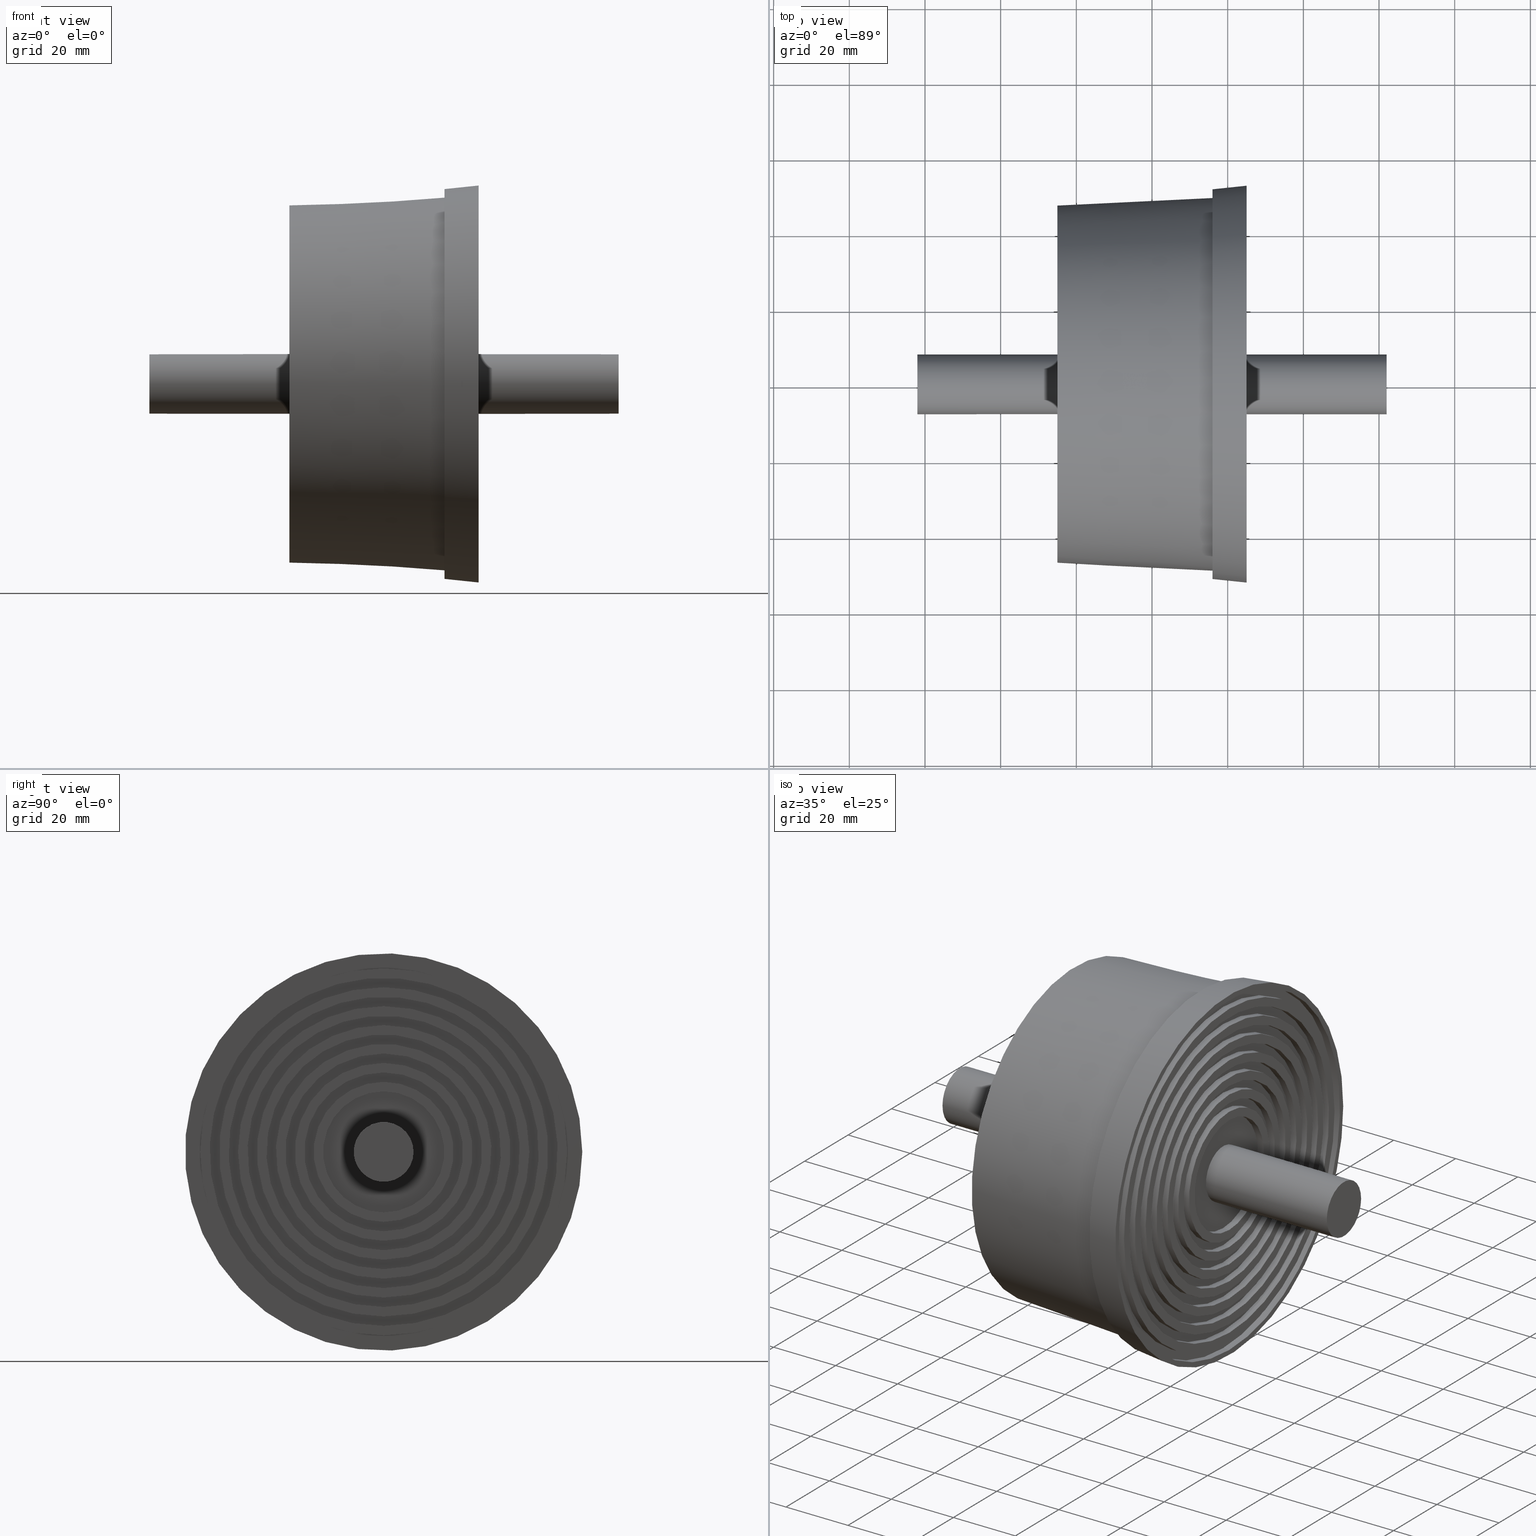
[diagram: canonical four-view strip — front | top / right | iso, engineering-drawing reading convention]
A machine part, canonical four-view strip (front | top / right | iso — engineering-drawing reading convention). The complete STEP part file that produces these views, byte-faithful:
ISO-10303-21;
HEADER;
/* Generated by software containing ST-Developer
 * from STEP Tools, Inc. (www.steptools.com) 
 */

FILE_DESCRIPTION(
/* description */ (''),
/* implementation_level */ '2;1');

FILE_NAME(
/* name */ '\\\\SYNOLOGYNAS\\web\\db2\\PR7-M16-100\\\X2\B3C4BA74\X0\\\
PR7-M16-100.stp',
/* time_stamp */ '2024-10-21T15:23:28+09:00',
/* author */ ('user'),
/* organization */ (''),
/* preprocessor_version */ 'ST-DEVELOPER v15.6',
/* originating_system */ 'Autodesk Inventor 2015',
/* authorisation */ '');

FILE_SCHEMA (('AUTOMOTIVE_DESIGN { 1 0 10303 214 3 1 1 }'));
ENDSEC;

DATA;
#10=MECHANICAL_DESIGN_GEOMETRIC_PRESENTATION_REPRESENTATION('',(#13),#1309);
#11=SHAPE_REPRESENTATION_RELATIONSHIP('SRR','None',#1318,#12);
#12=ADVANCED_BREP_SHAPE_REPRESENTATION($,(#14),#1308);
#13=STYLED_ITEM('',(#1327),#14);
#14=MANIFOLD_SOLID_BREP('\X2\C194B9ACB4DC\X0\1',#721);
#15=CONICAL_SURFACE('',#840,48.25,2.79270236571328);
#16=CONICAL_SURFACE('',#850,52.0275,5.99409294910843);
#17=PLANE('',#726);
#18=PLANE('',#734);
#19=PLANE('',#741);
#20=PLANE('',#748);
#21=PLANE('',#755);
#22=PLANE('',#762);
#23=PLANE('',#769);
#24=PLANE('',#776);
#25=PLANE('',#777);
#26=PLANE('',#779);
#27=PLANE('',#780);
#28=PLANE('',#781);
#29=PLANE('',#782);
#30=PLANE('',#783);
#31=PLANE('',#784);
#32=PLANE('',#788);
#33=PLANE('',#796);
#34=PLANE('',#803);
#35=PLANE('',#810);
#36=PLANE('',#817);
#37=PLANE('',#824);
#38=PLANE('',#831);
#39=PLANE('',#832);
#40=PLANE('',#834);
#41=PLANE('',#835);
#42=PLANE('',#836);
#43=PLANE('',#837);
#44=PLANE('',#838);
#45=PLANE('',#839);
#46=PLANE('',#846);
#47=PLANE('',#847);
#48=PLANE('',#848);
#49=PLANE('',#851);
#50=FACE_BOUND('',#179,.T.);
#51=FACE_BOUND('',#181,.T.);
#52=FACE_BOUND('',#183,.T.);
#53=FACE_BOUND('',#185,.T.);
#54=FACE_BOUND('',#187,.T.);
#55=FACE_BOUND('',#189,.T.);
#56=FACE_BOUND('',#191,.T.);
#57=FACE_BOUND('',#193,.T.);
#58=FACE_BOUND('',#195,.T.);
#59=FACE_BOUND('',#197,.T.);
#60=FACE_BOUND('',#199,.T.);
#61=FACE_BOUND('',#201,.T.);
#62=FACE_BOUND('',#203,.T.);
#63=FACE_BOUND('',#205,.T.);
#64=FACE_BOUND('',#207,.T.);
#65=FACE_BOUND('',#209,.T.);
#66=FACE_BOUND('',#211,.T.);
#67=FACE_BOUND('',#213,.T.);
#68=FACE_BOUND('',#215,.T.);
#69=FACE_BOUND('',#217,.T.);
#70=FACE_BOUND('',#219,.T.);
#71=FACE_BOUND('',#221,.T.);
#72=FACE_BOUND('',#223,.T.);
#73=FACE_BOUND('',#225,.T.);
#74=FACE_BOUND('',#227,.T.);
#75=FACE_BOUND('',#229,.T.);
#76=FACE_BOUND('',#231,.T.);
#77=FACE_BOUND('',#233,.T.);
#78=FACE_BOUND('',#235,.T.);
#79=FACE_BOUND('',#237,.T.);
#80=FACE_BOUND('',#239,.T.);
#81=FACE_BOUND('',#241,.T.);
#82=FACE_BOUND('',#243,.T.);
#83=FACE_BOUND('',#245,.T.);
#84=FACE_BOUND('',#247,.T.);
#85=FACE_BOUND('',#249,.T.);
#86=FACE_BOUND('',#251,.T.);
#87=FACE_BOUND('',#253,.T.);
#88=FACE_BOUND('',#255,.T.);
#89=FACE_BOUND('',#257,.T.);
#90=FACE_BOUND('',#259,.T.);
#91=FACE_BOUND('',#261,.T.);
#92=FACE_BOUND('',#263,.T.);
#93=FACE_BOUND('',#265,.T.);
#94=FACE_BOUND('',#267,.T.);
#95=FACE_BOUND('',#269,.T.);
#96=FACE_BOUND('',#271,.T.);
#97=FACE_BOUND('',#273,.T.);
#98=FACE_BOUND('',#275,.T.);
#99=FACE_BOUND('',#277,.T.);
#100=FACE_BOUND('',#279,.T.);
#101=FACE_BOUND('',#281,.T.);
#102=FACE_BOUND('',#283,.T.);
#103=FACE_BOUND('',#285,.T.);
#104=FACE_BOUND('',#287,.T.);
#105=FACE_BOUND('',#289,.T.);
#106=FACE_BOUND('',#291,.T.);
#107=FACE_BOUND('',#293,.T.);
#108=FACE_BOUND('',#295,.T.);
#109=FACE_BOUND('',#297,.T.);
#110=FACE_BOUND('',#301,.T.);
#111=FACE_BOUND('',#303,.T.);
#112=FACE_BOUND('',#305,.T.);
#113=FACE_OUTER_BOUND('',#178,.T.);
#114=FACE_OUTER_BOUND('',#180,.T.);
#115=FACE_OUTER_BOUND('',#182,.T.);
#116=FACE_OUTER_BOUND('',#184,.T.);
#117=FACE_OUTER_BOUND('',#186,.T.);
#118=FACE_OUTER_BOUND('',#188,.T.);
#119=FACE_OUTER_BOUND('',#190,.T.);
#120=FACE_OUTER_BOUND('',#192,.T.);
#121=FACE_OUTER_BOUND('',#194,.T.);
#122=FACE_OUTER_BOUND('',#196,.T.);
#123=FACE_OUTER_BOUND('',#198,.T.);
#124=FACE_OUTER_BOUND('',#200,.T.);
#125=FACE_OUTER_BOUND('',#202,.T.);
#126=FACE_OUTER_BOUND('',#204,.T.);
#127=FACE_OUTER_BOUND('',#206,.T.);
#128=FACE_OUTER_BOUND('',#208,.T.);
#129=FACE_OUTER_BOUND('',#210,.T.);
#130=FACE_OUTER_BOUND('',#212,.T.);
#131=FACE_OUTER_BOUND('',#214,.T.);
#132=FACE_OUTER_BOUND('',#216,.T.);
#133=FACE_OUTER_BOUND('',#218,.T.);
#134=FACE_OUTER_BOUND('',#220,.T.);
#135=FACE_OUTER_BOUND('',#222,.T.);
#136=FACE_OUTER_BOUND('',#224,.T.);
#137=FACE_OUTER_BOUND('',#226,.T.);
#138=FACE_OUTER_BOUND('',#228,.T.);
#139=FACE_OUTER_BOUND('',#230,.T.);
#140=FACE_OUTER_BOUND('',#232,.T.);
#141=FACE_OUTER_BOUND('',#234,.T.);
#142=FACE_OUTER_BOUND('',#236,.T.);
#143=FACE_OUTER_BOUND('',#238,.T.);
#144=FACE_OUTER_BOUND('',#240,.T.);
#145=FACE_OUTER_BOUND('',#242,.T.);
#146=FACE_OUTER_BOUND('',#244,.T.);
#147=FACE_OUTER_BOUND('',#246,.T.);
#148=FACE_OUTER_BOUND('',#248,.T.);
#149=FACE_OUTER_BOUND('',#250,.T.);
#150=FACE_OUTER_BOUND('',#252,.T.);
#151=FACE_OUTER_BOUND('',#254,.T.);
#152=FACE_OUTER_BOUND('',#256,.T.);
#153=FACE_OUTER_BOUND('',#258,.T.);
#154=FACE_OUTER_BOUND('',#260,.T.);
#155=FACE_OUTER_BOUND('',#262,.T.);
#156=FACE_OUTER_BOUND('',#264,.T.);
#157=FACE_OUTER_BOUND('',#266,.T.);
#158=FACE_OUTER_BOUND('',#268,.T.);
#159=FACE_OUTER_BOUND('',#270,.T.);
#160=FACE_OUTER_BOUND('',#272,.T.);
#161=FACE_OUTER_BOUND('',#274,.T.);
#162=FACE_OUTER_BOUND('',#276,.T.);
#163=FACE_OUTER_BOUND('',#278,.T.);
#164=FACE_OUTER_BOUND('',#280,.T.);
#165=FACE_OUTER_BOUND('',#282,.T.);
#166=FACE_OUTER_BOUND('',#284,.T.);
#167=FACE_OUTER_BOUND('',#286,.T.);
#168=FACE_OUTER_BOUND('',#288,.T.);
#169=FACE_OUTER_BOUND('',#290,.T.);
#170=FACE_OUTER_BOUND('',#292,.T.);
#171=FACE_OUTER_BOUND('',#294,.T.);
#172=FACE_OUTER_BOUND('',#296,.T.);
#173=FACE_OUTER_BOUND('',#298,.T.);
#174=FACE_OUTER_BOUND('',#299,.T.);
#175=FACE_OUTER_BOUND('',#300,.T.);
#176=FACE_OUTER_BOUND('',#302,.T.);
#177=FACE_OUTER_BOUND('',#304,.T.);
#178=EDGE_LOOP('',(#498));
#179=EDGE_LOOP('',(#499));
#180=EDGE_LOOP('',(#500));
#181=EDGE_LOOP('',(#501));
#182=EDGE_LOOP('',(#502));
#183=EDGE_LOOP('',(#503));
#184=EDGE_LOOP('',(#504));
#185=EDGE_LOOP('',(#505));
#186=EDGE_LOOP('',(#506));
#187=EDGE_LOOP('',(#507));
#188=EDGE_LOOP('',(#508));
#189=EDGE_LOOP('',(#509));
#190=EDGE_LOOP('',(#510));
#191=EDGE_LOOP('',(#511));
#192=EDGE_LOOP('',(#512));
#193=EDGE_LOOP('',(#513));
#194=EDGE_LOOP('',(#514));
#195=EDGE_LOOP('',(#515));
#196=EDGE_LOOP('',(#516));
#197=EDGE_LOOP('',(#517));
#198=EDGE_LOOP('',(#518));
#199=EDGE_LOOP('',(#519));
#200=EDGE_LOOP('',(#520));
#201=EDGE_LOOP('',(#521));
#202=EDGE_LOOP('',(#522));
#203=EDGE_LOOP('',(#523));
#204=EDGE_LOOP('',(#524));
#205=EDGE_LOOP('',(#525));
#206=EDGE_LOOP('',(#526));
#207=EDGE_LOOP('',(#527));
#208=EDGE_LOOP('',(#528));
#209=EDGE_LOOP('',(#529));
#210=EDGE_LOOP('',(#530));
#211=EDGE_LOOP('',(#531));
#212=EDGE_LOOP('',(#532));
#213=EDGE_LOOP('',(#533));
#214=EDGE_LOOP('',(#534));
#215=EDGE_LOOP('',(#535));
#216=EDGE_LOOP('',(#536));
#217=EDGE_LOOP('',(#537));
#218=EDGE_LOOP('',(#538));
#219=EDGE_LOOP('',(#539));
#220=EDGE_LOOP('',(#540));
#221=EDGE_LOOP('',(#541));
#222=EDGE_LOOP('',(#542));
#223=EDGE_LOOP('',(#543));
#224=EDGE_LOOP('',(#544));
#225=EDGE_LOOP('',(#545));
#226=EDGE_LOOP('',(#546));
#227=EDGE_LOOP('',(#547));
#228=EDGE_LOOP('',(#548));
#229=EDGE_LOOP('',(#549));
#230=EDGE_LOOP('',(#550));
#231=EDGE_LOOP('',(#551));
#232=EDGE_LOOP('',(#552));
#233=EDGE_LOOP('',(#553));
#234=EDGE_LOOP('',(#554));
#235=EDGE_LOOP('',(#555));
#236=EDGE_LOOP('',(#556));
#237=EDGE_LOOP('',(#557));
#238=EDGE_LOOP('',(#558));
#239=EDGE_LOOP('',(#559));
#240=EDGE_LOOP('',(#560));
#241=EDGE_LOOP('',(#561));
#242=EDGE_LOOP('',(#562));
#243=EDGE_LOOP('',(#563));
#244=EDGE_LOOP('',(#564));
#245=EDGE_LOOP('',(#565));
#246=EDGE_LOOP('',(#566));
#247=EDGE_LOOP('',(#567));
#248=EDGE_LOOP('',(#568));
#249=EDGE_LOOP('',(#569));
#250=EDGE_LOOP('',(#570));
#251=EDGE_LOOP('',(#571));
#252=EDGE_LOOP('',(#572));
#253=EDGE_LOOP('',(#573));
#254=EDGE_LOOP('',(#574));
#255=EDGE_LOOP('',(#575));
#256=EDGE_LOOP('',(#576));
#257=EDGE_LOOP('',(#577));
#258=EDGE_LOOP('',(#578));
#259=EDGE_LOOP('',(#579));
#260=EDGE_LOOP('',(#580));
#261=EDGE_LOOP('',(#581));
#262=EDGE_LOOP('',(#582));
#263=EDGE_LOOP('',(#583));
#264=EDGE_LOOP('',(#584));
#265=EDGE_LOOP('',(#585));
#266=EDGE_LOOP('',(#586));
#267=EDGE_LOOP('',(#587));
#268=EDGE_LOOP('',(#588));
#269=EDGE_LOOP('',(#589));
#270=EDGE_LOOP('',(#590));
#271=EDGE_LOOP('',(#591));
#272=EDGE_LOOP('',(#592));
#273=EDGE_LOOP('',(#593));
#274=EDGE_LOOP('',(#594));
#275=EDGE_LOOP('',(#595));
#276=EDGE_LOOP('',(#596));
#277=EDGE_LOOP('',(#597));
#278=EDGE_LOOP('',(#598));
#279=EDGE_LOOP('',(#599));
#280=EDGE_LOOP('',(#600));
#281=EDGE_LOOP('',(#601));
#282=EDGE_LOOP('',(#602));
#283=EDGE_LOOP('',(#603));
#284=EDGE_LOOP('',(#604));
#285=EDGE_LOOP('',(#605));
#286=EDGE_LOOP('',(#606));
#287=EDGE_LOOP('',(#607));
#288=EDGE_LOOP('',(#608));
#289=EDGE_LOOP('',(#609));
#290=EDGE_LOOP('',(#610));
#291=EDGE_LOOP('',(#611));
#292=EDGE_LOOP('',(#612));
#293=EDGE_LOOP('',(#613));
#294=EDGE_LOOP('',(#614));
#295=EDGE_LOOP('',(#615));
#296=EDGE_LOOP('',(#616));
#297=EDGE_LOOP('',(#617));
#298=EDGE_LOOP('',(#618));
#299=EDGE_LOOP('',(#619));
#300=EDGE_LOOP('',(#620));
#301=EDGE_LOOP('',(#621));
#302=EDGE_LOOP('',(#622));
#303=EDGE_LOOP('',(#623));
#304=EDGE_LOOP('',(#624));
#305=EDGE_LOOP('',(#625));
#306=CIRCLE('',#724,16.);
#307=CIRCLE('',#725,16.);
#308=CIRCLE('',#727,7.89999999999999);
#309=CIRCLE('',#729,18.5);
#310=CIRCLE('',#730,18.5);
#311=CIRCLE('',#732,21.);
#312=CIRCLE('',#733,21.);
#313=CIRCLE('',#736,23.5);
#314=CIRCLE('',#737,23.5);
#315=CIRCLE('',#739,26.);
#316=CIRCLE('',#740,26.);
#317=CIRCLE('',#743,28.5);
#318=CIRCLE('',#744,28.5);
#319=CIRCLE('',#746,31.);
#320=CIRCLE('',#747,31.);
#321=CIRCLE('',#750,33.5);
#322=CIRCLE('',#751,33.5);
#323=CIRCLE('',#753,36.);
#324=CIRCLE('',#754,36.);
#325=CIRCLE('',#757,38.5);
#326=CIRCLE('',#758,38.5);
#327=CIRCLE('',#760,41.);
#328=CIRCLE('',#761,41.);
#329=CIRCLE('',#764,43.5);
#330=CIRCLE('',#765,43.5);
#331=CIRCLE('',#767,46.);
#332=CIRCLE('',#768,46.);
#333=CIRCLE('',#771,48.5);
#334=CIRCLE('',#772,48.5);
#335=CIRCLE('',#774,51.);
#336=CIRCLE('',#775,51.);
#337=CIRCLE('',#778,52.5);
#338=CIRCLE('',#786,15.25);
#339=CIRCLE('',#787,15.25);
#340=CIRCLE('',#789,7.89999999999999);
#341=CIRCLE('',#791,17.75);
#342=CIRCLE('',#792,17.75);
#343=CIRCLE('',#794,20.25);
#344=CIRCLE('',#795,20.25);
#345=CIRCLE('',#798,22.75);
#346=CIRCLE('',#799,22.75);
#347=CIRCLE('',#801,25.25);
#348=CIRCLE('',#802,25.25);
#349=CIRCLE('',#805,27.75);
#350=CIRCLE('',#806,27.75);
#351=CIRCLE('',#808,30.25);
#352=CIRCLE('',#809,30.25);
#353=CIRCLE('',#812,32.75);
#354=CIRCLE('',#813,32.75);
#355=CIRCLE('',#815,35.25);
#356=CIRCLE('',#816,35.25);
#357=CIRCLE('',#819,37.75);
#358=CIRCLE('',#820,37.75);
#359=CIRCLE('',#822,40.25);
#360=CIRCLE('',#823,40.25);
#361=CIRCLE('',#826,42.75);
#362=CIRCLE('',#827,42.75);
#363=CIRCLE('',#829,45.25);
#364=CIRCLE('',#830,45.25);
#365=CIRCLE('',#833,47.25);
#366=CIRCLE('',#841,49.25);
#367=CIRCLE('',#843,7.9);
#368=CIRCLE('',#845,7.89999999999998);
#369=CIRCLE('',#849,51.555);
#370=VERTEX_POINT('',#1114);
#371=VERTEX_POINT('',#1116);
#372=VERTEX_POINT('',#1119);
#373=VERTEX_POINT('',#1122);
#374=VERTEX_POINT('',#1124);
#375=VERTEX_POINT('',#1127);
#376=VERTEX_POINT('',#1129);
#377=VERTEX_POINT('',#1133);
#378=VERTEX_POINT('',#1135);
#379=VERTEX_POINT('',#1138);
#380=VERTEX_POINT('',#1140);
#381=VERTEX_POINT('',#1144);
#382=VERTEX_POINT('',#1146);
#383=VERTEX_POINT('',#1149);
#384=VERTEX_POINT('',#1151);
#385=VERTEX_POINT('',#1155);
#386=VERTEX_POINT('',#1157);
#387=VERTEX_POINT('',#1160);
#388=VERTEX_POINT('',#1162);
#389=VERTEX_POINT('',#1166);
#390=VERTEX_POINT('',#1168);
#391=VERTEX_POINT('',#1171);
#392=VERTEX_POINT('',#1173);
#393=VERTEX_POINT('',#1177);
#394=VERTEX_POINT('',#1179);
#395=VERTEX_POINT('',#1182);
#396=VERTEX_POINT('',#1184);
#397=VERTEX_POINT('',#1188);
#398=VERTEX_POINT('',#1190);
#399=VERTEX_POINT('',#1193);
#400=VERTEX_POINT('',#1195);
#401=VERTEX_POINT('',#1199);
#402=VERTEX_POINT('',#1208);
#403=VERTEX_POINT('',#1210);
#404=VERTEX_POINT('',#1213);
#405=VERTEX_POINT('',#1216);
#406=VERTEX_POINT('',#1218);
#407=VERTEX_POINT('',#1221);
#408=VERTEX_POINT('',#1223);
#409=VERTEX_POINT('',#1227);
#410=VERTEX_POINT('',#1229);
#411=VERTEX_POINT('',#1232);
#412=VERTEX_POINT('',#1234);
#413=VERTEX_POINT('',#1238);
#414=VERTEX_POINT('',#1240);
#415=VERTEX_POINT('',#1243);
#416=VERTEX_POINT('',#1245);
#417=VERTEX_POINT('',#1249);
#418=VERTEX_POINT('',#1251);
#419=VERTEX_POINT('',#1254);
#420=VERTEX_POINT('',#1256);
#421=VERTEX_POINT('',#1260);
#422=VERTEX_POINT('',#1262);
#423=VERTEX_POINT('',#1265);
#424=VERTEX_POINT('',#1267);
#425=VERTEX_POINT('',#1271);
#426=VERTEX_POINT('',#1273);
#427=VERTEX_POINT('',#1276);
#428=VERTEX_POINT('',#1278);
#429=VERTEX_POINT('',#1282);
#430=VERTEX_POINT('',#1291);
#431=VERTEX_POINT('',#1294);
#432=VERTEX_POINT('',#1297);
#433=VERTEX_POINT('',#1302);
#434=EDGE_CURVE('',#370,#370,#306,.T.);
#435=EDGE_CURVE('',#371,#371,#307,.T.);
#436=EDGE_CURVE('',#372,#372,#308,.T.);
#437=EDGE_CURVE('',#373,#373,#309,.T.);
#438=EDGE_CURVE('',#374,#374,#310,.T.);
#439=EDGE_CURVE('',#375,#375,#311,.T.);
#440=EDGE_CURVE('',#376,#376,#312,.T.);
#441=EDGE_CURVE('',#377,#377,#313,.T.);
#442=EDGE_CURVE('',#378,#378,#314,.T.);
#443=EDGE_CURVE('',#379,#379,#315,.T.);
#444=EDGE_CURVE('',#380,#380,#316,.T.);
#445=EDGE_CURVE('',#381,#381,#317,.T.);
#446=EDGE_CURVE('',#382,#382,#318,.T.);
#447=EDGE_CURVE('',#383,#383,#319,.T.);
#448=EDGE_CURVE('',#384,#384,#320,.T.);
#449=EDGE_CURVE('',#385,#385,#321,.T.);
#450=EDGE_CURVE('',#386,#386,#322,.T.);
#451=EDGE_CURVE('',#387,#387,#323,.T.);
#452=EDGE_CURVE('',#388,#388,#324,.T.);
#453=EDGE_CURVE('',#389,#389,#325,.T.);
#454=EDGE_CURVE('',#390,#390,#326,.T.);
#455=EDGE_CURVE('',#391,#391,#327,.T.);
#456=EDGE_CURVE('',#392,#392,#328,.T.);
#457=EDGE_CURVE('',#393,#393,#329,.T.);
#458=EDGE_CURVE('',#394,#394,#330,.T.);
#459=EDGE_CURVE('',#395,#395,#331,.T.);
#460=EDGE_CURVE('',#396,#396,#332,.T.);
#461=EDGE_CURVE('',#397,#397,#333,.T.);
#462=EDGE_CURVE('',#398,#398,#334,.T.);
#463=EDGE_CURVE('',#399,#399,#335,.T.);
#464=EDGE_CURVE('',#400,#400,#336,.T.);
#465=EDGE_CURVE('',#401,#401,#337,.T.);
#466=EDGE_CURVE('',#402,#402,#338,.T.);
#467=EDGE_CURVE('',#403,#403,#339,.T.);
#468=EDGE_CURVE('',#404,#404,#340,.T.);
#469=EDGE_CURVE('',#405,#405,#341,.T.);
#470=EDGE_CURVE('',#406,#406,#342,.T.);
#471=EDGE_CURVE('',#407,#407,#343,.T.);
#472=EDGE_CURVE('',#408,#408,#344,.T.);
#473=EDGE_CURVE('',#409,#409,#345,.T.);
#474=EDGE_CURVE('',#410,#410,#346,.T.);
#475=EDGE_CURVE('',#411,#411,#347,.T.);
#476=EDGE_CURVE('',#412,#412,#348,.T.);
#477=EDGE_CURVE('',#413,#413,#349,.T.);
#478=EDGE_CURVE('',#414,#414,#350,.T.);
#479=EDGE_CURVE('',#415,#415,#351,.T.);
#480=EDGE_CURVE('',#416,#416,#352,.T.);
#481=EDGE_CURVE('',#417,#417,#353,.T.);
#482=EDGE_CURVE('',#418,#418,#354,.T.);
#483=EDGE_CURVE('',#419,#419,#355,.T.);
#484=EDGE_CURVE('',#420,#420,#356,.T.);
#485=EDGE_CURVE('',#421,#421,#357,.T.);
#486=EDGE_CURVE('',#422,#422,#358,.T.);
#487=EDGE_CURVE('',#423,#423,#359,.T.);
#488=EDGE_CURVE('',#424,#424,#360,.T.);
#489=EDGE_CURVE('',#425,#425,#361,.T.);
#490=EDGE_CURVE('',#426,#426,#362,.T.);
#491=EDGE_CURVE('',#427,#427,#363,.T.);
#492=EDGE_CURVE('',#428,#428,#364,.T.);
#493=EDGE_CURVE('',#429,#429,#365,.T.);
#494=EDGE_CURVE('',#430,#430,#366,.T.);
#495=EDGE_CURVE('',#431,#431,#367,.T.);
#496=EDGE_CURVE('',#432,#432,#368,.T.);
#497=EDGE_CURVE('',#433,#433,#369,.T.);
#498=ORIENTED_EDGE('',*,*,#434,.T.);
#499=ORIENTED_EDGE('',*,*,#435,.F.);
#500=ORIENTED_EDGE('',*,*,#434,.F.);
#501=ORIENTED_EDGE('',*,*,#436,.F.);
#502=ORIENTED_EDGE('',*,*,#437,.T.);
#503=ORIENTED_EDGE('',*,*,#438,.F.);
#504=ORIENTED_EDGE('',*,*,#439,.T.);
#505=ORIENTED_EDGE('',*,*,#440,.F.);
#506=ORIENTED_EDGE('',*,*,#439,.F.);
#507=ORIENTED_EDGE('',*,*,#437,.F.);
#508=ORIENTED_EDGE('',*,*,#441,.T.);
#509=ORIENTED_EDGE('',*,*,#442,.F.);
#510=ORIENTED_EDGE('',*,*,#443,.T.);
#511=ORIENTED_EDGE('',*,*,#444,.F.);
#512=ORIENTED_EDGE('',*,*,#443,.F.);
#513=ORIENTED_EDGE('',*,*,#441,.F.);
#514=ORIENTED_EDGE('',*,*,#445,.T.);
#515=ORIENTED_EDGE('',*,*,#446,.F.);
#516=ORIENTED_EDGE('',*,*,#447,.T.);
#517=ORIENTED_EDGE('',*,*,#448,.F.);
#518=ORIENTED_EDGE('',*,*,#447,.F.);
#519=ORIENTED_EDGE('',*,*,#445,.F.);
#520=ORIENTED_EDGE('',*,*,#449,.T.);
#521=ORIENTED_EDGE('',*,*,#450,.F.);
#522=ORIENTED_EDGE('',*,*,#451,.T.);
#523=ORIENTED_EDGE('',*,*,#452,.F.);
#524=ORIENTED_EDGE('',*,*,#451,.F.);
#525=ORIENTED_EDGE('',*,*,#449,.F.);
#526=ORIENTED_EDGE('',*,*,#453,.T.);
#527=ORIENTED_EDGE('',*,*,#454,.F.);
#528=ORIENTED_EDGE('',*,*,#455,.T.);
#529=ORIENTED_EDGE('',*,*,#456,.F.);
#530=ORIENTED_EDGE('',*,*,#455,.F.);
#531=ORIENTED_EDGE('',*,*,#453,.F.);
#532=ORIENTED_EDGE('',*,*,#457,.T.);
#533=ORIENTED_EDGE('',*,*,#458,.F.);
#534=ORIENTED_EDGE('',*,*,#459,.T.);
#535=ORIENTED_EDGE('',*,*,#460,.F.);
#536=ORIENTED_EDGE('',*,*,#459,.F.);
#537=ORIENTED_EDGE('',*,*,#457,.F.);
#538=ORIENTED_EDGE('',*,*,#461,.T.);
#539=ORIENTED_EDGE('',*,*,#462,.F.);
#540=ORIENTED_EDGE('',*,*,#463,.T.);
#541=ORIENTED_EDGE('',*,*,#464,.F.);
#542=ORIENTED_EDGE('',*,*,#463,.F.);
#543=ORIENTED_EDGE('',*,*,#461,.F.);
#544=ORIENTED_EDGE('',*,*,#465,.T.);
#545=ORIENTED_EDGE('',*,*,#464,.T.);
#546=ORIENTED_EDGE('',*,*,#462,.T.);
#547=ORIENTED_EDGE('',*,*,#460,.T.);
#548=ORIENTED_EDGE('',*,*,#458,.T.);
#549=ORIENTED_EDGE('',*,*,#456,.T.);
#550=ORIENTED_EDGE('',*,*,#454,.T.);
#551=ORIENTED_EDGE('',*,*,#452,.T.);
#552=ORIENTED_EDGE('',*,*,#450,.T.);
#553=ORIENTED_EDGE('',*,*,#448,.T.);
#554=ORIENTED_EDGE('',*,*,#446,.T.);
#555=ORIENTED_EDGE('',*,*,#444,.T.);
#556=ORIENTED_EDGE('',*,*,#442,.T.);
#557=ORIENTED_EDGE('',*,*,#440,.T.);
#558=ORIENTED_EDGE('',*,*,#466,.T.);
#559=ORIENTED_EDGE('',*,*,#467,.F.);
#560=ORIENTED_EDGE('',*,*,#466,.F.);
#561=ORIENTED_EDGE('',*,*,#468,.F.);
#562=ORIENTED_EDGE('',*,*,#469,.T.);
#563=ORIENTED_EDGE('',*,*,#470,.F.);
#564=ORIENTED_EDGE('',*,*,#471,.T.);
#565=ORIENTED_EDGE('',*,*,#472,.F.);
#566=ORIENTED_EDGE('',*,*,#471,.F.);
#567=ORIENTED_EDGE('',*,*,#469,.F.);
#568=ORIENTED_EDGE('',*,*,#473,.T.);
#569=ORIENTED_EDGE('',*,*,#474,.F.);
#570=ORIENTED_EDGE('',*,*,#475,.T.);
#571=ORIENTED_EDGE('',*,*,#476,.F.);
#572=ORIENTED_EDGE('',*,*,#475,.F.);
#573=ORIENTED_EDGE('',*,*,#473,.F.);
#574=ORIENTED_EDGE('',*,*,#477,.T.);
#575=ORIENTED_EDGE('',*,*,#478,.F.);
#576=ORIENTED_EDGE('',*,*,#479,.T.);
#577=ORIENTED_EDGE('',*,*,#480,.F.);
#578=ORIENTED_EDGE('',*,*,#479,.F.);
#579=ORIENTED_EDGE('',*,*,#477,.F.);
#580=ORIENTED_EDGE('',*,*,#481,.T.);
#581=ORIENTED_EDGE('',*,*,#482,.F.);
#582=ORIENTED_EDGE('',*,*,#483,.T.);
#583=ORIENTED_EDGE('',*,*,#484,.F.);
#584=ORIENTED_EDGE('',*,*,#483,.F.);
#585=ORIENTED_EDGE('',*,*,#481,.F.);
#586=ORIENTED_EDGE('',*,*,#485,.T.);
#587=ORIENTED_EDGE('',*,*,#486,.F.);
#588=ORIENTED_EDGE('',*,*,#487,.T.);
#589=ORIENTED_EDGE('',*,*,#488,.F.);
#590=ORIENTED_EDGE('',*,*,#487,.F.);
#591=ORIENTED_EDGE('',*,*,#485,.F.);
#592=ORIENTED_EDGE('',*,*,#489,.T.);
#593=ORIENTED_EDGE('',*,*,#490,.F.);
#594=ORIENTED_EDGE('',*,*,#491,.T.);
#595=ORIENTED_EDGE('',*,*,#492,.F.);
#596=ORIENTED_EDGE('',*,*,#491,.F.);
#597=ORIENTED_EDGE('',*,*,#489,.F.);
#598=ORIENTED_EDGE('',*,*,#493,.F.);
#599=ORIENTED_EDGE('',*,*,#492,.T.);
#600=ORIENTED_EDGE('',*,*,#490,.T.);
#601=ORIENTED_EDGE('',*,*,#488,.T.);
#602=ORIENTED_EDGE('',*,*,#486,.T.);
#603=ORIENTED_EDGE('',*,*,#484,.T.);
#604=ORIENTED_EDGE('',*,*,#482,.T.);
#605=ORIENTED_EDGE('',*,*,#480,.T.);
#606=ORIENTED_EDGE('',*,*,#478,.T.);
#607=ORIENTED_EDGE('',*,*,#476,.T.);
#608=ORIENTED_EDGE('',*,*,#474,.T.);
#609=ORIENTED_EDGE('',*,*,#472,.T.);
#610=ORIENTED_EDGE('',*,*,#470,.T.);
#611=ORIENTED_EDGE('',*,*,#467,.T.);
#612=ORIENTED_EDGE('',*,*,#493,.T.);
#613=ORIENTED_EDGE('',*,*,#494,.F.);
#614=ORIENTED_EDGE('',*,*,#436,.T.);
#615=ORIENTED_EDGE('',*,*,#495,.F.);
#616=ORIENTED_EDGE('',*,*,#468,.T.);
#617=ORIENTED_EDGE('',*,*,#496,.T.);
#618=ORIENTED_EDGE('',*,*,#496,.F.);
#619=ORIENTED_EDGE('',*,*,#495,.T.);
#620=ORIENTED_EDGE('',*,*,#497,.F.);
#621=ORIENTED_EDGE('',*,*,#494,.T.);
#622=ORIENTED_EDGE('',*,*,#497,.T.);
#623=ORIENTED_EDGE('',*,*,#465,.F.);
#624=ORIENTED_EDGE('',*,*,#438,.T.);
#625=ORIENTED_EDGE('',*,*,#435,.T.);
#626=CYLINDRICAL_SURFACE('',#723,16.);
#627=CYLINDRICAL_SURFACE('',#728,18.5);
#628=CYLINDRICAL_SURFACE('',#731,21.);
#629=CYLINDRICAL_SURFACE('',#735,23.5);
#630=CYLINDRICAL_SURFACE('',#738,26.);
#631=CYLINDRICAL_SURFACE('',#742,28.5);
#632=CYLINDRICAL_SURFACE('',#745,31.);
#633=CYLINDRICAL_SURFACE('',#749,33.5);
#634=CYLINDRICAL_SURFACE('',#752,36.);
#635=CYLINDRICAL_SURFACE('',#756,38.5);
#636=CYLINDRICAL_SURFACE('',#759,41.);
#637=CYLINDRICAL_SURFACE('',#763,43.5);
#638=CYLINDRICAL_SURFACE('',#766,46.);
#639=CYLINDRICAL_SURFACE('',#770,48.5);
#640=CYLINDRICAL_SURFACE('',#773,51.);
#641=CYLINDRICAL_SURFACE('',#785,15.25);
#642=CYLINDRICAL_SURFACE('',#790,17.75);
#643=CYLINDRICAL_SURFACE('',#793,20.25);
#644=CYLINDRICAL_SURFACE('',#797,22.75);
#645=CYLINDRICAL_SURFACE('',#800,25.25);
#646=CYLINDRICAL_SURFACE('',#804,27.75);
#647=CYLINDRICAL_SURFACE('',#807,30.25);
#648=CYLINDRICAL_SURFACE('',#811,32.75);
#649=CYLINDRICAL_SURFACE('',#814,35.25);
#650=CYLINDRICAL_SURFACE('',#818,37.75);
#651=CYLINDRICAL_SURFACE('',#821,40.25);
#652=CYLINDRICAL_SURFACE('',#825,42.75);
#653=CYLINDRICAL_SURFACE('',#828,45.25);
#654=CYLINDRICAL_SURFACE('',#842,7.89999999999999);
#655=CYLINDRICAL_SURFACE('',#844,7.89999999999999);
#656=ADVANCED_FACE('',(#113,#50),#626,.F.);
#657=ADVANCED_FACE('',(#114,#51),#17,.F.);
#658=ADVANCED_FACE('',(#115,#52),#627,.T.);
#659=ADVANCED_FACE('',(#116,#53),#628,.F.);
#660=ADVANCED_FACE('',(#117,#54),#18,.F.);
#661=ADVANCED_FACE('',(#118,#55),#629,.T.);
#662=ADVANCED_FACE('',(#119,#56),#630,.F.);
#663=ADVANCED_FACE('',(#120,#57),#19,.F.);
#664=ADVANCED_FACE('',(#121,#58),#631,.T.);
#665=ADVANCED_FACE('',(#122,#59),#632,.F.);
#666=ADVANCED_FACE('',(#123,#60),#20,.F.);
#667=ADVANCED_FACE('',(#124,#61),#633,.T.);
#668=ADVANCED_FACE('',(#125,#62),#634,.F.);
#669=ADVANCED_FACE('',(#126,#63),#21,.F.);
#670=ADVANCED_FACE('',(#127,#64),#635,.T.);
#671=ADVANCED_FACE('',(#128,#65),#636,.F.);
#672=ADVANCED_FACE('',(#129,#66),#22,.F.);
#673=ADVANCED_FACE('',(#130,#67),#637,.T.);
#674=ADVANCED_FACE('',(#131,#68),#638,.F.);
#675=ADVANCED_FACE('',(#132,#69),#23,.F.);
#676=ADVANCED_FACE('',(#133,#70),#639,.T.);
#677=ADVANCED_FACE('',(#134,#71),#640,.F.);
#678=ADVANCED_FACE('',(#135,#72),#24,.F.);
#679=ADVANCED_FACE('',(#136,#73),#25,.T.);
#680=ADVANCED_FACE('',(#137,#74),#26,.T.);
#681=ADVANCED_FACE('',(#138,#75),#27,.T.);
#682=ADVANCED_FACE('',(#139,#76),#28,.T.);
#683=ADVANCED_FACE('',(#140,#77),#29,.T.);
#684=ADVANCED_FACE('',(#141,#78),#30,.T.);
#685=ADVANCED_FACE('',(#142,#79),#31,.T.);
#686=ADVANCED_FACE('',(#143,#80),#641,.F.);
#687=ADVANCED_FACE('',(#144,#81),#32,.T.);
#688=ADVANCED_FACE('',(#145,#82),#642,.T.);
#689=ADVANCED_FACE('',(#146,#83),#643,.F.);
#690=ADVANCED_FACE('',(#147,#84),#33,.T.);
#691=ADVANCED_FACE('',(#148,#85),#644,.T.);
#692=ADVANCED_FACE('',(#149,#86),#645,.F.);
#693=ADVANCED_FACE('',(#150,#87),#34,.T.);
#694=ADVANCED_FACE('',(#151,#88),#646,.T.);
#695=ADVANCED_FACE('',(#152,#89),#647,.F.);
#696=ADVANCED_FACE('',(#153,#90),#35,.T.);
#697=ADVANCED_FACE('',(#154,#91),#648,.T.);
#698=ADVANCED_FACE('',(#155,#92),#649,.F.);
#699=ADVANCED_FACE('',(#156,#93),#36,.T.);
#700=ADVANCED_FACE('',(#157,#94),#650,.T.);
#701=ADVANCED_FACE('',(#158,#95),#651,.F.);
#702=ADVANCED_FACE('',(#159,#96),#37,.T.);
#703=ADVANCED_FACE('',(#160,#97),#652,.T.);
#704=ADVANCED_FACE('',(#161,#98),#653,.F.);
#705=ADVANCED_FACE('',(#162,#99),#38,.T.);
#706=ADVANCED_FACE('',(#163,#100),#39,.T.);
#707=ADVANCED_FACE('',(#164,#101),#40,.T.);
#708=ADVANCED_FACE('',(#165,#102),#41,.T.);
#709=ADVANCED_FACE('',(#166,#103),#42,.T.);
#710=ADVANCED_FACE('',(#167,#104),#43,.T.);
#711=ADVANCED_FACE('',(#168,#105),#44,.T.);
#712=ADVANCED_FACE('',(#169,#106),#45,.T.);
#713=ADVANCED_FACE('',(#170,#107),#15,.T.);
#714=ADVANCED_FACE('',(#171,#108),#654,.T.);
#715=ADVANCED_FACE('',(#172,#109),#655,.T.);
#716=ADVANCED_FACE('',(#173),#46,.T.);
#717=ADVANCED_FACE('',(#174),#47,.T.);
#718=ADVANCED_FACE('',(#175,#110),#48,.T.);
#719=ADVANCED_FACE('',(#176,#111),#16,.T.);
#720=ADVANCED_FACE('',(#177,#112),#49,.T.);
#721=CLOSED_SHELL('',(#656,#657,#658,#659,#660,#661,#662,#663,#664,#665,
#666,#667,#668,#669,#670,#671,#672,#673,#674,#675,#676,#677,#678,#679,#680,
#681,#682,#683,#684,#685,#686,#687,#688,#689,#690,#691,#692,#693,#694,#695,
#696,#697,#698,#699,#700,#701,#702,#703,#704,#705,#706,#707,#708,#709,#710,
#711,#712,#713,#714,#715,#716,#717,#718,#719,#720));
#722=AXIS2_PLACEMENT_3D('placement',#1112,#852,#853);
#723=AXIS2_PLACEMENT_3D('',#1113,#854,#855);
#724=AXIS2_PLACEMENT_3D('',#1115,#856,#857);
#725=AXIS2_PLACEMENT_3D('',#1117,#858,#859);
#726=AXIS2_PLACEMENT_3D('',#1118,#860,#861);
#727=AXIS2_PLACEMENT_3D('',#1120,#862,#863);
#728=AXIS2_PLACEMENT_3D('',#1121,#864,#865);
#729=AXIS2_PLACEMENT_3D('',#1123,#866,#867);
#730=AXIS2_PLACEMENT_3D('',#1125,#868,#869);
#731=AXIS2_PLACEMENT_3D('',#1126,#870,#871);
#732=AXIS2_PLACEMENT_3D('',#1128,#872,#873);
#733=AXIS2_PLACEMENT_3D('',#1130,#874,#875);
#734=AXIS2_PLACEMENT_3D('',#1131,#876,#877);
#735=AXIS2_PLACEMENT_3D('',#1132,#878,#879);
#736=AXIS2_PLACEMENT_3D('',#1134,#880,#881);
#737=AXIS2_PLACEMENT_3D('',#1136,#882,#883);
#738=AXIS2_PLACEMENT_3D('',#1137,#884,#885);
#739=AXIS2_PLACEMENT_3D('',#1139,#886,#887);
#740=AXIS2_PLACEMENT_3D('',#1141,#888,#889);
#741=AXIS2_PLACEMENT_3D('',#1142,#890,#891);
#742=AXIS2_PLACEMENT_3D('',#1143,#892,#893);
#743=AXIS2_PLACEMENT_3D('',#1145,#894,#895);
#744=AXIS2_PLACEMENT_3D('',#1147,#896,#897);
#745=AXIS2_PLACEMENT_3D('',#1148,#898,#899);
#746=AXIS2_PLACEMENT_3D('',#1150,#900,#901);
#747=AXIS2_PLACEMENT_3D('',#1152,#902,#903);
#748=AXIS2_PLACEMENT_3D('',#1153,#904,#905);
#749=AXIS2_PLACEMENT_3D('',#1154,#906,#907);
#750=AXIS2_PLACEMENT_3D('',#1156,#908,#909);
#751=AXIS2_PLACEMENT_3D('',#1158,#910,#911);
#752=AXIS2_PLACEMENT_3D('',#1159,#912,#913);
#753=AXIS2_PLACEMENT_3D('',#1161,#914,#915);
#754=AXIS2_PLACEMENT_3D('',#1163,#916,#917);
#755=AXIS2_PLACEMENT_3D('',#1164,#918,#919);
#756=AXIS2_PLACEMENT_3D('',#1165,#920,#921);
#757=AXIS2_PLACEMENT_3D('',#1167,#922,#923);
#758=AXIS2_PLACEMENT_3D('',#1169,#924,#925);
#759=AXIS2_PLACEMENT_3D('',#1170,#926,#927);
#760=AXIS2_PLACEMENT_3D('',#1172,#928,#929);
#761=AXIS2_PLACEMENT_3D('',#1174,#930,#931);
#762=AXIS2_PLACEMENT_3D('',#1175,#932,#933);
#763=AXIS2_PLACEMENT_3D('',#1176,#934,#935);
#764=AXIS2_PLACEMENT_3D('',#1178,#936,#937);
#765=AXIS2_PLACEMENT_3D('',#1180,#938,#939);
#766=AXIS2_PLACEMENT_3D('',#1181,#940,#941);
#767=AXIS2_PLACEMENT_3D('',#1183,#942,#943);
#768=AXIS2_PLACEMENT_3D('',#1185,#944,#945);
#769=AXIS2_PLACEMENT_3D('',#1186,#946,#947);
#770=AXIS2_PLACEMENT_3D('',#1187,#948,#949);
#771=AXIS2_PLACEMENT_3D('',#1189,#950,#951);
#772=AXIS2_PLACEMENT_3D('',#1191,#952,#953);
#773=AXIS2_PLACEMENT_3D('',#1192,#954,#955);
#774=AXIS2_PLACEMENT_3D('',#1194,#956,#957);
#775=AXIS2_PLACEMENT_3D('',#1196,#958,#959);
#776=AXIS2_PLACEMENT_3D('',#1197,#960,#961);
#777=AXIS2_PLACEMENT_3D('',#1198,#962,#963);
#778=AXIS2_PLACEMENT_3D('',#1200,#964,#965);
#779=AXIS2_PLACEMENT_3D('',#1201,#966,#967);
#780=AXIS2_PLACEMENT_3D('',#1202,#968,#969);
#781=AXIS2_PLACEMENT_3D('',#1203,#970,#971);
#782=AXIS2_PLACEMENT_3D('',#1204,#972,#973);
#783=AXIS2_PLACEMENT_3D('',#1205,#974,#975);
#784=AXIS2_PLACEMENT_3D('',#1206,#976,#977);
#785=AXIS2_PLACEMENT_3D('',#1207,#978,#979);
#786=AXIS2_PLACEMENT_3D('',#1209,#980,#981);
#787=AXIS2_PLACEMENT_3D('',#1211,#982,#983);
#788=AXIS2_PLACEMENT_3D('',#1212,#984,#985);
#789=AXIS2_PLACEMENT_3D('',#1214,#986,#987);
#790=AXIS2_PLACEMENT_3D('',#1215,#988,#989);
#791=AXIS2_PLACEMENT_3D('',#1217,#990,#991);
#792=AXIS2_PLACEMENT_3D('',#1219,#992,#993);
#793=AXIS2_PLACEMENT_3D('',#1220,#994,#995);
#794=AXIS2_PLACEMENT_3D('',#1222,#996,#997);
#795=AXIS2_PLACEMENT_3D('',#1224,#998,#999);
#796=AXIS2_PLACEMENT_3D('',#1225,#1000,#1001);
#797=AXIS2_PLACEMENT_3D('',#1226,#1002,#1003);
#798=AXIS2_PLACEMENT_3D('',#1228,#1004,#1005);
#799=AXIS2_PLACEMENT_3D('',#1230,#1006,#1007);
#800=AXIS2_PLACEMENT_3D('',#1231,#1008,#1009);
#801=AXIS2_PLACEMENT_3D('',#1233,#1010,#1011);
#802=AXIS2_PLACEMENT_3D('',#1235,#1012,#1013);
#803=AXIS2_PLACEMENT_3D('',#1236,#1014,#1015);
#804=AXIS2_PLACEMENT_3D('',#1237,#1016,#1017);
#805=AXIS2_PLACEMENT_3D('',#1239,#1018,#1019);
#806=AXIS2_PLACEMENT_3D('',#1241,#1020,#1021);
#807=AXIS2_PLACEMENT_3D('',#1242,#1022,#1023);
#808=AXIS2_PLACEMENT_3D('',#1244,#1024,#1025);
#809=AXIS2_PLACEMENT_3D('',#1246,#1026,#1027);
#810=AXIS2_PLACEMENT_3D('',#1247,#1028,#1029);
#811=AXIS2_PLACEMENT_3D('',#1248,#1030,#1031);
#812=AXIS2_PLACEMENT_3D('',#1250,#1032,#1033);
#813=AXIS2_PLACEMENT_3D('',#1252,#1034,#1035);
#814=AXIS2_PLACEMENT_3D('',#1253,#1036,#1037);
#815=AXIS2_PLACEMENT_3D('',#1255,#1038,#1039);
#816=AXIS2_PLACEMENT_3D('',#1257,#1040,#1041);
#817=AXIS2_PLACEMENT_3D('',#1258,#1042,#1043);
#818=AXIS2_PLACEMENT_3D('',#1259,#1044,#1045);
#819=AXIS2_PLACEMENT_3D('',#1261,#1046,#1047);
#820=AXIS2_PLACEMENT_3D('',#1263,#1048,#1049);
#821=AXIS2_PLACEMENT_3D('',#1264,#1050,#1051);
#822=AXIS2_PLACEMENT_3D('',#1266,#1052,#1053);
#823=AXIS2_PLACEMENT_3D('',#1268,#1054,#1055);
#824=AXIS2_PLACEMENT_3D('',#1269,#1056,#1057);
#825=AXIS2_PLACEMENT_3D('',#1270,#1058,#1059);
#826=AXIS2_PLACEMENT_3D('',#1272,#1060,#1061);
#827=AXIS2_PLACEMENT_3D('',#1274,#1062,#1063);
#828=AXIS2_PLACEMENT_3D('',#1275,#1064,#1065);
#829=AXIS2_PLACEMENT_3D('',#1277,#1066,#1067);
#830=AXIS2_PLACEMENT_3D('',#1279,#1068,#1069);
#831=AXIS2_PLACEMENT_3D('',#1280,#1070,#1071);
#832=AXIS2_PLACEMENT_3D('',#1281,#1072,#1073);
#833=AXIS2_PLACEMENT_3D('',#1283,#1074,#1075);
#834=AXIS2_PLACEMENT_3D('',#1284,#1076,#1077);
#835=AXIS2_PLACEMENT_3D('',#1285,#1078,#1079);
#836=AXIS2_PLACEMENT_3D('',#1286,#1080,#1081);
#837=AXIS2_PLACEMENT_3D('',#1287,#1082,#1083);
#838=AXIS2_PLACEMENT_3D('',#1288,#1084,#1085);
#839=AXIS2_PLACEMENT_3D('',#1289,#1086,#1087);
#840=AXIS2_PLACEMENT_3D('',#1290,#1088,#1089);
#841=AXIS2_PLACEMENT_3D('',#1292,#1090,#1091);
#842=AXIS2_PLACEMENT_3D('',#1293,#1092,#1093);
#843=AXIS2_PLACEMENT_3D('',#1295,#1094,#1095);
#844=AXIS2_PLACEMENT_3D('',#1296,#1096,#1097);
#845=AXIS2_PLACEMENT_3D('',#1298,#1098,#1099);
#846=AXIS2_PLACEMENT_3D('',#1299,#1100,#1101);
#847=AXIS2_PLACEMENT_3D('',#1300,#1102,#1103);
#848=AXIS2_PLACEMENT_3D('',#1301,#1104,#1105);
#849=AXIS2_PLACEMENT_3D('',#1303,#1106,#1107);
#850=AXIS2_PLACEMENT_3D('',#1304,#1108,#1109);
#851=AXIS2_PLACEMENT_3D('',#1305,#1110,#1111);
#852=DIRECTION('axis',(0.,0.,1.));
#853=DIRECTION('refdir',(1.,0.,0.));
#854=DIRECTION('center_axis',(-1.,0.,0.));
#855=DIRECTION('ref_axis',(0.,0.,1.));
#856=DIRECTION('center_axis',(-1.,-2.40506373542991E-32,0.));
#857=DIRECTION('ref_axis',(0.,0.,1.));
#858=DIRECTION('center_axis',(-1.,-2.40506373542991E-32,0.));
#859=DIRECTION('ref_axis',(0.,0.,1.));
#860=DIRECTION('center_axis',(-1.,-2.40506373542991E-32,0.));
#861=DIRECTION('ref_axis',(0.,0.,1.));
#862=DIRECTION('center_axis',(1.,2.40506373542991E-32,0.));
#863=DIRECTION('ref_axis',(0.,0.,1.));
#864=DIRECTION('center_axis',(-1.,0.,0.));
#865=DIRECTION('ref_axis',(0.,0.,1.));
#866=DIRECTION('center_axis',(1.,2.40506373542991E-32,0.));
#867=DIRECTION('ref_axis',(0.,0.,1.));
#868=DIRECTION('center_axis',(1.,2.40506373542991E-32,0.));
#869=DIRECTION('ref_axis',(0.,0.,1.));
#870=DIRECTION('center_axis',(-1.,0.,0.));
#871=DIRECTION('ref_axis',(0.,0.,1.));
#872=DIRECTION('center_axis',(-1.,-2.40506373542991E-32,0.));
#873=DIRECTION('ref_axis',(0.,0.,1.));
#874=DIRECTION('center_axis',(-1.,-2.40506373542991E-32,0.));
#875=DIRECTION('ref_axis',(0.,0.,1.));
#876=DIRECTION('center_axis',(-1.,-2.40506373542991E-32,0.));
#877=DIRECTION('ref_axis',(0.,0.,1.));
#878=DIRECTION('center_axis',(-1.,0.,0.));
#879=DIRECTION('ref_axis',(0.,0.,1.));
#880=DIRECTION('center_axis',(1.,2.40506373542991E-32,0.));
#881=DIRECTION('ref_axis',(0.,0.,1.));
#882=DIRECTION('center_axis',(1.,2.40506373542991E-32,0.));
#883=DIRECTION('ref_axis',(0.,0.,1.));
#884=DIRECTION('center_axis',(-1.,0.,0.));
#885=DIRECTION('ref_axis',(0.,0.,1.));
#886=DIRECTION('center_axis',(-1.,-2.40506373542991E-32,0.));
#887=DIRECTION('ref_axis',(0.,0.,1.));
#888=DIRECTION('center_axis',(-1.,-2.40506373542991E-32,0.));
#889=DIRECTION('ref_axis',(0.,0.,1.));
#890=DIRECTION('center_axis',(-1.,-2.40506373542991E-32,0.));
#891=DIRECTION('ref_axis',(0.,0.,1.));
#892=DIRECTION('center_axis',(-1.,0.,0.));
#893=DIRECTION('ref_axis',(0.,0.,1.));
#894=DIRECTION('center_axis',(1.,2.40506373542991E-32,0.));
#895=DIRECTION('ref_axis',(0.,0.,1.));
#896=DIRECTION('center_axis',(1.,2.40506373542991E-32,0.));
#897=DIRECTION('ref_axis',(0.,0.,1.));
#898=DIRECTION('center_axis',(-1.,0.,0.));
#899=DIRECTION('ref_axis',(0.,0.,1.));
#900=DIRECTION('center_axis',(-1.,-2.40506373542991E-32,0.));
#901=DIRECTION('ref_axis',(0.,0.,1.));
#902=DIRECTION('center_axis',(-1.,-2.40506373542991E-32,0.));
#903=DIRECTION('ref_axis',(0.,0.,1.));
#904=DIRECTION('center_axis',(-1.,-2.40506373542991E-32,0.));
#905=DIRECTION('ref_axis',(0.,0.,1.));
#906=DIRECTION('center_axis',(-1.,0.,0.));
#907=DIRECTION('ref_axis',(0.,0.,1.));
#908=DIRECTION('center_axis',(1.,2.40506373542991E-32,0.));
#909=DIRECTION('ref_axis',(0.,0.,1.));
#910=DIRECTION('center_axis',(1.,2.40506373542991E-32,0.));
#911=DIRECTION('ref_axis',(0.,0.,1.));
#912=DIRECTION('center_axis',(-1.,0.,0.));
#913=DIRECTION('ref_axis',(0.,0.,1.));
#914=DIRECTION('center_axis',(-1.,-2.40506373542991E-32,0.));
#915=DIRECTION('ref_axis',(0.,0.,1.));
#916=DIRECTION('center_axis',(-1.,-2.40506373542991E-32,0.));
#917=DIRECTION('ref_axis',(0.,0.,1.));
#918=DIRECTION('center_axis',(-1.,-2.40506373542991E-32,0.));
#919=DIRECTION('ref_axis',(0.,0.,1.));
#920=DIRECTION('center_axis',(-1.,0.,0.));
#921=DIRECTION('ref_axis',(0.,0.,1.));
#922=DIRECTION('center_axis',(1.,2.40506373542991E-32,0.));
#923=DIRECTION('ref_axis',(0.,0.,1.));
#924=DIRECTION('center_axis',(1.,2.40506373542991E-32,0.));
#925=DIRECTION('ref_axis',(0.,0.,1.));
#926=DIRECTION('center_axis',(-1.,0.,0.));
#927=DIRECTION('ref_axis',(0.,0.,1.));
#928=DIRECTION('center_axis',(-1.,-2.40506373542991E-32,0.));
#929=DIRECTION('ref_axis',(0.,0.,1.));
#930=DIRECTION('center_axis',(-1.,-2.40506373542991E-32,0.));
#931=DIRECTION('ref_axis',(0.,0.,1.));
#932=DIRECTION('center_axis',(-1.,-2.40506373542991E-32,0.));
#933=DIRECTION('ref_axis',(0.,0.,1.));
#934=DIRECTION('center_axis',(-1.,0.,0.));
#935=DIRECTION('ref_axis',(0.,0.,1.));
#936=DIRECTION('center_axis',(1.,2.40506373542991E-32,0.));
#937=DIRECTION('ref_axis',(0.,0.,1.));
#938=DIRECTION('center_axis',(1.,2.40506373542991E-32,0.));
#939=DIRECTION('ref_axis',(0.,0.,1.));
#940=DIRECTION('center_axis',(-1.,0.,0.));
#941=DIRECTION('ref_axis',(0.,0.,1.));
#942=DIRECTION('center_axis',(-1.,-2.40506373542991E-32,0.));
#943=DIRECTION('ref_axis',(0.,0.,1.));
#944=DIRECTION('center_axis',(-1.,-2.40506373542991E-32,0.));
#945=DIRECTION('ref_axis',(0.,0.,1.));
#946=DIRECTION('center_axis',(-1.,-2.40506373542991E-32,0.));
#947=DIRECTION('ref_axis',(0.,0.,1.));
#948=DIRECTION('center_axis',(-1.,0.,0.));
#949=DIRECTION('ref_axis',(0.,0.,1.));
#950=DIRECTION('center_axis',(1.,2.40506373542991E-32,0.));
#951=DIRECTION('ref_axis',(0.,0.,1.));
#952=DIRECTION('center_axis',(1.,2.40506373542991E-32,0.));
#953=DIRECTION('ref_axis',(0.,0.,1.));
#954=DIRECTION('center_axis',(-1.,0.,0.));
#955=DIRECTION('ref_axis',(0.,0.,1.));
#956=DIRECTION('center_axis',(-1.,-2.40506373542991E-32,0.));
#957=DIRECTION('ref_axis',(0.,0.,1.));
#958=DIRECTION('center_axis',(-1.,-2.40506373542991E-32,0.));
#959=DIRECTION('ref_axis',(0.,0.,1.));
#960=DIRECTION('center_axis',(-1.,-2.40506373542991E-32,0.));
#961=DIRECTION('ref_axis',(0.,0.,1.));
#962=DIRECTION('center_axis',(1.,2.40506373542991E-32,0.));
#963=DIRECTION('ref_axis',(0.,0.,-1.));
#964=DIRECTION('center_axis',(1.,2.40506373542991E-32,0.));
#965=DIRECTION('ref_axis',(0.,0.,-1.));
#966=DIRECTION('center_axis',(1.,2.40506373542991E-32,0.));
#967=DIRECTION('ref_axis',(0.,0.,-1.));
#968=DIRECTION('center_axis',(1.,2.40506373542991E-32,0.));
#969=DIRECTION('ref_axis',(0.,0.,-1.));
#970=DIRECTION('center_axis',(1.,2.40506373542991E-32,0.));
#971=DIRECTION('ref_axis',(0.,0.,-1.));
#972=DIRECTION('center_axis',(1.,2.40506373542991E-32,0.));
#973=DIRECTION('ref_axis',(0.,0.,-1.));
#974=DIRECTION('center_axis',(1.,2.40506373542991E-32,0.));
#975=DIRECTION('ref_axis',(0.,0.,-1.));
#976=DIRECTION('center_axis',(1.,2.40506373542991E-32,0.));
#977=DIRECTION('ref_axis',(0.,0.,-1.));
#978=DIRECTION('center_axis',(1.,0.,0.));
#979=DIRECTION('ref_axis',(0.,0.,-1.));
#980=DIRECTION('center_axis',(1.,2.40506373542991E-32,0.));
#981=DIRECTION('ref_axis',(0.,0.,-1.));
#982=DIRECTION('center_axis',(1.,2.40506373542991E-32,0.));
#983=DIRECTION('ref_axis',(0.,0.,-1.));
#984=DIRECTION('center_axis',(-1.,-2.40506373542991E-32,0.));
#985=DIRECTION('ref_axis',(0.,0.,1.));
#986=DIRECTION('center_axis',(-1.,-2.40506373542991E-32,0.));
#987=DIRECTION('ref_axis',(0.,0.,-1.));
#988=DIRECTION('center_axis',(1.,0.,0.));
#989=DIRECTION('ref_axis',(0.,0.,-1.));
#990=DIRECTION('center_axis',(-1.,-2.40506373542991E-32,0.));
#991=DIRECTION('ref_axis',(0.,0.,-1.));
#992=DIRECTION('center_axis',(-1.,-2.40506373542991E-32,0.));
#993=DIRECTION('ref_axis',(0.,0.,-1.));
#994=DIRECTION('center_axis',(1.,0.,0.));
#995=DIRECTION('ref_axis',(0.,0.,-1.));
#996=DIRECTION('center_axis',(1.,2.40506373542991E-32,0.));
#997=DIRECTION('ref_axis',(0.,0.,-1.));
#998=DIRECTION('center_axis',(1.,2.40506373542991E-32,0.));
#999=DIRECTION('ref_axis',(0.,0.,-1.));
#1000=DIRECTION('center_axis',(-1.,-2.40506373542991E-32,0.));
#1001=DIRECTION('ref_axis',(0.,0.,1.));
#1002=DIRECTION('center_axis',(1.,0.,0.));
#1003=DIRECTION('ref_axis',(0.,0.,-1.));
#1004=DIRECTION('center_axis',(-1.,-2.40506373542991E-32,0.));
#1005=DIRECTION('ref_axis',(0.,0.,-1.));
#1006=DIRECTION('center_axis',(-1.,-2.40506373542991E-32,0.));
#1007=DIRECTION('ref_axis',(0.,0.,-1.));
#1008=DIRECTION('center_axis',(1.,0.,0.));
#1009=DIRECTION('ref_axis',(0.,0.,-1.));
#1010=DIRECTION('center_axis',(1.,2.40506373542991E-32,0.));
#1011=DIRECTION('ref_axis',(0.,0.,-1.));
#1012=DIRECTION('center_axis',(1.,2.40506373542991E-32,0.));
#1013=DIRECTION('ref_axis',(0.,0.,-1.));
#1014=DIRECTION('center_axis',(-1.,-2.40506373542991E-32,0.));
#1015=DIRECTION('ref_axis',(0.,0.,1.));
#1016=DIRECTION('center_axis',(1.,0.,0.));
#1017=DIRECTION('ref_axis',(0.,0.,-1.));
#1018=DIRECTION('center_axis',(-1.,-2.40506373542991E-32,0.));
#1019=DIRECTION('ref_axis',(0.,0.,-1.));
#1020=DIRECTION('center_axis',(-1.,-2.40506373542991E-32,0.));
#1021=DIRECTION('ref_axis',(0.,0.,-1.));
#1022=DIRECTION('center_axis',(1.,0.,0.));
#1023=DIRECTION('ref_axis',(0.,0.,-1.));
#1024=DIRECTION('center_axis',(1.,2.40506373542991E-32,0.));
#1025=DIRECTION('ref_axis',(0.,0.,-1.));
#1026=DIRECTION('center_axis',(1.,2.40506373542991E-32,0.));
#1027=DIRECTION('ref_axis',(0.,0.,-1.));
#1028=DIRECTION('center_axis',(-1.,-2.40506373542991E-32,0.));
#1029=DIRECTION('ref_axis',(0.,0.,1.));
#1030=DIRECTION('center_axis',(1.,0.,0.));
#1031=DIRECTION('ref_axis',(0.,0.,-1.));
#1032=DIRECTION('center_axis',(-1.,-2.40506373542991E-32,0.));
#1033=DIRECTION('ref_axis',(0.,0.,-1.));
#1034=DIRECTION('center_axis',(-1.,-2.40506373542991E-32,0.));
#1035=DIRECTION('ref_axis',(0.,0.,-1.));
#1036=DIRECTION('center_axis',(1.,0.,0.));
#1037=DIRECTION('ref_axis',(0.,0.,-1.));
#1038=DIRECTION('center_axis',(1.,2.40506373542991E-32,0.));
#1039=DIRECTION('ref_axis',(0.,0.,-1.));
#1040=DIRECTION('center_axis',(1.,2.40506373542991E-32,0.));
#1041=DIRECTION('ref_axis',(0.,0.,-1.));
#1042=DIRECTION('center_axis',(-1.,-2.40506373542991E-32,0.));
#1043=DIRECTION('ref_axis',(0.,0.,1.));
#1044=DIRECTION('center_axis',(1.,0.,0.));
#1045=DIRECTION('ref_axis',(0.,0.,-1.));
#1046=DIRECTION('center_axis',(-1.,-2.40506373542991E-32,0.));
#1047=DIRECTION('ref_axis',(0.,0.,-1.));
#1048=DIRECTION('center_axis',(-1.,-2.40506373542991E-32,0.));
#1049=DIRECTION('ref_axis',(0.,0.,-1.));
#1050=DIRECTION('center_axis',(1.,0.,0.));
#1051=DIRECTION('ref_axis',(0.,0.,-1.));
#1052=DIRECTION('center_axis',(1.,2.40506373542991E-32,0.));
#1053=DIRECTION('ref_axis',(0.,0.,-1.));
#1054=DIRECTION('center_axis',(1.,2.40506373542991E-32,0.));
#1055=DIRECTION('ref_axis',(0.,0.,-1.));
#1056=DIRECTION('center_axis',(-1.,-2.40506373542991E-32,0.));
#1057=DIRECTION('ref_axis',(0.,0.,1.));
#1058=DIRECTION('center_axis',(1.,0.,0.));
#1059=DIRECTION('ref_axis',(0.,0.,-1.));
#1060=DIRECTION('center_axis',(-1.,-2.40506373542991E-32,0.));
#1061=DIRECTION('ref_axis',(0.,0.,-1.));
#1062=DIRECTION('center_axis',(-1.,-2.40506373542991E-32,0.));
#1063=DIRECTION('ref_axis',(0.,0.,-1.));
#1064=DIRECTION('center_axis',(1.,0.,0.));
#1065=DIRECTION('ref_axis',(0.,0.,-1.));
#1066=DIRECTION('center_axis',(1.,2.40506373542991E-32,0.));
#1067=DIRECTION('ref_axis',(0.,0.,-1.));
#1068=DIRECTION('center_axis',(1.,2.40506373542991E-32,0.));
#1069=DIRECTION('ref_axis',(0.,0.,-1.));
#1070=DIRECTION('center_axis',(-1.,-2.40506373542991E-32,0.));
#1071=DIRECTION('ref_axis',(0.,0.,1.));
#1072=DIRECTION('center_axis',(-1.,-2.40506373542991E-32,0.));
#1073=DIRECTION('ref_axis',(0.,0.,1.));
#1074=DIRECTION('center_axis',(1.,2.40506373542991E-32,0.));
#1075=DIRECTION('ref_axis',(0.,0.,-1.));
#1076=DIRECTION('center_axis',(-1.,-2.40506373542991E-32,0.));
#1077=DIRECTION('ref_axis',(0.,0.,1.));
#1078=DIRECTION('center_axis',(-1.,-2.40506373542991E-32,0.));
#1079=DIRECTION('ref_axis',(0.,0.,1.));
#1080=DIRECTION('center_axis',(-1.,-2.40506373542991E-32,0.));
#1081=DIRECTION('ref_axis',(0.,0.,1.));
#1082=DIRECTION('center_axis',(-1.,-2.40506373542991E-32,0.));
#1083=DIRECTION('ref_axis',(0.,0.,1.));
#1084=DIRECTION('center_axis',(-1.,-2.40506373542991E-32,0.));
#1085=DIRECTION('ref_axis',(0.,0.,1.));
#1086=DIRECTION('center_axis',(-1.,-2.40506373542991E-32,0.));
#1087=DIRECTION('ref_axis',(0.,0.,1.));
#1088=DIRECTION('center_axis',(1.,2.40506373542991E-32,0.));
#1089=DIRECTION('ref_axis',(0.,1.,0.));
#1090=DIRECTION('center_axis',(1.,2.40506373542991E-32,0.));
#1091=DIRECTION('ref_axis',(0.,1.,0.));
#1092=DIRECTION('center_axis',(1.,2.40506373542991E-32,0.));
#1093=DIRECTION('ref_axis',(0.,1.,0.));
#1094=DIRECTION('center_axis',(1.,2.40506373542991E-32,0.));
#1095=DIRECTION('ref_axis',(0.,0.,-1.));
#1096=DIRECTION('center_axis',(1.,2.40506373542991E-32,0.));
#1097=DIRECTION('ref_axis',(0.,1.,0.));
#1098=DIRECTION('center_axis',(1.,2.40506373542991E-32,0.));
#1099=DIRECTION('ref_axis',(0.,0.,-1.));
#1100=DIRECTION('center_axis',(-1.,-2.40506373542991E-32,0.));
#1101=DIRECTION('ref_axis',(0.,0.,1.));
#1102=DIRECTION('center_axis',(1.,2.40506373542991E-32,0.));
#1103=DIRECTION('ref_axis',(0.,0.,-1.));
#1104=DIRECTION('center_axis',(-1.,-2.40506373542991E-32,0.));
#1105=DIRECTION('ref_axis',(0.,0.,1.));
#1106=DIRECTION('center_axis',(1.,2.40506373542991E-32,0.));
#1107=DIRECTION('ref_axis',(0.,0.,-1.));
#1108=DIRECTION('center_axis',(1.,2.40506373542991E-32,0.));
#1109=DIRECTION('ref_axis',(0.,1.,0.));
#1110=DIRECTION('center_axis',(1.,2.40506373542991E-32,0.));
#1111=DIRECTION('ref_axis',(0.,0.,-1.));
#1112=CARTESIAN_POINT('',(0.,0.,0.));
#1113=CARTESIAN_POINT('Origin',(25.,7.09493801951824E-31,0.));
#1114=CARTESIAN_POINT('',(23.,1.95943487863577E-15,-16.));
#1115=CARTESIAN_POINT('Origin',(23.,7.09493801951824E-31,0.));
#1116=CARTESIAN_POINT('',(25.,1.95943487863577E-15,-16.));
#1117=CARTESIAN_POINT('Origin',(25.,7.09493801951824E-31,0.));
#1118=CARTESIAN_POINT('Origin',(23.,1.23322148308893E-31,1.08847209374061E-15));
#1119=CARTESIAN_POINT('',(23.,9.67470971326409E-16,-7.89999999999999));
#1120=CARTESIAN_POINT('Origin',(23.,1.20253186771496E-30,0.));
#1121=CARTESIAN_POINT('Origin',(25.,7.09493801951824E-31,0.));
#1122=CARTESIAN_POINT('',(23.,2.2655965784226E-15,-18.5));
#1123=CARTESIAN_POINT('Origin',(23.,7.09493801951824E-31,0.));
#1124=CARTESIAN_POINT('',(25.,2.2655965784226E-15,-18.5));
#1125=CARTESIAN_POINT('Origin',(25.,7.09493801951824E-31,0.));
#1126=CARTESIAN_POINT('Origin',(25.,7.09493801951824E-31,0.));
#1127=CARTESIAN_POINT('',(23.,2.57175827820944E-15,-21.));
#1128=CARTESIAN_POINT('Origin',(23.,7.09493801951824E-31,0.));
#1129=CARTESIAN_POINT('',(25.,2.57175827820944E-15,-21.));
#1130=CARTESIAN_POINT('Origin',(25.,7.09493801951824E-31,0.));
#1131=CARTESIAN_POINT('Origin',(23.,3.52451753849256E-16,9.19216697549299E-16));
#1132=CARTESIAN_POINT('Origin',(25.,7.09493801951824E-31,0.));
#1133=CARTESIAN_POINT('',(23.,2.87791997799628E-15,-23.5));
#1134=CARTESIAN_POINT('Origin',(23.,7.09493801951824E-31,0.));
#1135=CARTESIAN_POINT('',(25.,2.87791997799628E-15,-23.5));
#1136=CARTESIAN_POINT('Origin',(25.,7.09493801951824E-31,0.));
#1137=CARTESIAN_POINT('Origin',(25.,7.09493801951824E-31,0.));
#1138=CARTESIAN_POINT('',(23.,3.18408167778312E-15,-26.));
#1139=CARTESIAN_POINT('Origin',(23.,7.09493801951824E-31,0.));
#1140=CARTESIAN_POINT('',(25.,3.18408167778312E-15,-26.));
#1141=CARTESIAN_POINT('Origin',(25.,7.09493801951824E-31,0.));
#1142=CARTESIAN_POINT('Origin',(23.,1.06531989819363E-31,2.6534013981526E-16));
#1143=CARTESIAN_POINT('Origin',(25.,7.09493801951824E-31,0.));
#1144=CARTESIAN_POINT('',(23.,3.49024337756996E-15,-28.5));
#1145=CARTESIAN_POINT('Origin',(23.,7.09493801951824E-31,0.));
#1146=CARTESIAN_POINT('',(25.,3.49024337756996E-15,-28.5));
#1147=CARTESIAN_POINT('Origin',(25.,7.09493801951824E-31,0.));
#1148=CARTESIAN_POINT('Origin',(25.,7.09493801951824E-31,0.));
#1149=CARTESIAN_POINT('',(23.,3.7964050773568E-15,-31.));
#1150=CARTESIAN_POINT('Origin',(23.,7.09493801951824E-31,0.));
#1151=CARTESIAN_POINT('',(25.,3.7964050773568E-15,-31.));
#1152=CARTESIAN_POINT('Origin',(25.,7.09493801951824E-31,0.));
#1153=CARTESIAN_POINT('Origin',(23.,1.12139329276967E-31,2.22642820741441E-15));
#1154=CARTESIAN_POINT('Origin',(25.,7.09493801951824E-31,0.));
#1155=CARTESIAN_POINT('',(23.,4.10256677714363E-15,-33.5));
#1156=CARTESIAN_POINT('Origin',(23.,7.09493801951824E-31,0.));
#1157=CARTESIAN_POINT('',(25.,4.10256677714363E-15,-33.5));
#1158=CARTESIAN_POINT('Origin',(25.,7.09493801951824E-31,0.));
#1159=CARTESIAN_POINT('Origin',(25.,7.09493801951824E-31,0.));
#1160=CARTESIAN_POINT('',(23.,4.40872847693047E-15,-36.));
#1161=CARTESIAN_POINT('Origin',(23.,7.09493801951824E-31,0.));
#1162=CARTESIAN_POINT('',(25.,4.40872847693047E-15,-36.));
#1163=CARTESIAN_POINT('Origin',(25.,7.09493801951824E-31,0.));
#1164=CARTESIAN_POINT('Origin',(23.,8.22387425648264E-16,2.01216889104073E-15));
#1165=CARTESIAN_POINT('Origin',(25.,7.09493801951824E-31,0.));
#1166=CARTESIAN_POINT('',(23.,4.71489017671731E-15,-38.5));
#1167=CARTESIAN_POINT('Origin',(23.,7.09493801951824E-31,0.));
#1168=CARTESIAN_POINT('',(25.,4.71489017671731E-15,-38.5));
#1169=CARTESIAN_POINT('Origin',(25.,7.09493801951824E-31,0.));
#1170=CARTESIAN_POINT('Origin',(25.,7.09493801951824E-31,0.));
#1171=CARTESIAN_POINT('',(23.,5.02105187650415E-15,-41.));
#1172=CARTESIAN_POINT('Origin',(23.,7.09493801951824E-31,0.));
#1173=CARTESIAN_POINT('',(25.,5.02105187650415E-15,-41.));
#1174=CARTESIAN_POINT('Origin',(25.,7.09493801951824E-31,0.));
#1175=CARTESIAN_POINT('Origin',(23.,7.22096276178964E-16,1.86261354206661E-15));
#1176=CARTESIAN_POINT('Origin',(25.,7.09493801951824E-31,0.));
#1177=CARTESIAN_POINT('',(23.,5.32721357629099E-15,-43.5));
#1178=CARTESIAN_POINT('Origin',(23.,7.09493801951824E-31,0.));
#1179=CARTESIAN_POINT('',(25.,5.32721357629099E-15,-43.5));
#1180=CARTESIAN_POINT('Origin',(25.,7.09493801951824E-31,0.));
#1181=CARTESIAN_POINT('Origin',(25.,7.09493801951824E-31,0.));
#1182=CARTESIAN_POINT('',(23.,5.63337527607782E-15,-46.));
#1183=CARTESIAN_POINT('Origin',(23.,7.09493801951824E-31,0.));
#1184=CARTESIAN_POINT('',(25.,5.63337527607782E-15,-46.));
#1185=CARTESIAN_POINT('Origin',(25.,7.09493801951824E-31,0.));
#1186=CARTESIAN_POINT('Origin',(23.,6.43607550507337E-16,1.75666304068783E-15));
#1187=CARTESIAN_POINT('Origin',(25.,7.09493801951824E-31,0.));
#1188=CARTESIAN_POINT('',(23.,5.93953697586466E-15,-48.5));
#1189=CARTESIAN_POINT('Origin',(23.,7.09493801951824E-31,0.));
#1190=CARTESIAN_POINT('',(25.,5.93953697586466E-15,-48.5));
#1191=CARTESIAN_POINT('Origin',(25.,7.09493801951824E-31,0.));
#1192=CARTESIAN_POINT('Origin',(25.,7.09493801951824E-31,0.));
#1193=CARTESIAN_POINT('',(23.,6.2456986756515E-15,-51.));
#1194=CARTESIAN_POINT('Origin',(23.,7.09493801951824E-31,0.));
#1195=CARTESIAN_POINT('',(25.,6.2456986756515E-15,-51.));
#1196=CARTESIAN_POINT('Origin',(25.,7.09493801951824E-31,0.));
#1197=CARTESIAN_POINT('Origin',(23.,1.55798614037776E-31,5.20474889637625E-16));
#1198=CARTESIAN_POINT('Origin',(25.,9.18485099360515E-15,0.));
#1199=CARTESIAN_POINT('',(25.,52.5,0.));
#1200=CARTESIAN_POINT('Origin',(25.,1.20253186771496E-30,0.));
#1201=CARTESIAN_POINT('Origin',(25.,9.18485099360515E-15,0.));
#1202=CARTESIAN_POINT('Origin',(25.,9.18485099360515E-15,0.));
#1203=CARTESIAN_POINT('Origin',(25.,9.18485099360515E-15,0.));
#1204=CARTESIAN_POINT('Origin',(25.,9.18485099360515E-15,0.));
#1205=CARTESIAN_POINT('Origin',(25.,9.18485099360515E-15,0.));
#1206=CARTESIAN_POINT('Origin',(25.,9.18485099360515E-15,0.));
#1207=CARTESIAN_POINT('Origin',(-25.,-3.25759170441364E-46,0.));
#1208=CARTESIAN_POINT('',(-23.,1.86758636869971E-15,15.25));
#1209=CARTESIAN_POINT('Origin',(-23.,-3.25759170441364E-46,0.));
#1210=CARTESIAN_POINT('',(-25.,1.86758636869971E-15,15.25));
#1211=CARTESIAN_POINT('Origin',(-25.,-3.25759170441364E-46,0.));
#1212=CARTESIAN_POINT('Origin',(-23.,-2.71465975367803E-47,-1.55632197391643E-16));
#1213=CARTESIAN_POINT('',(-23.,9.67470971326408E-16,7.89999999999999));
#1214=CARTESIAN_POINT('Origin',(-23.,-1.06806285390611E-46,0.));
#1215=CARTESIAN_POINT('Origin',(-25.,-3.25759170441364E-46,0.));
#1216=CARTESIAN_POINT('',(-23.,2.17374806848655E-15,17.75));
#1217=CARTESIAN_POINT('Origin',(-23.,-3.25759170441364E-46,0.));
#1218=CARTESIAN_POINT('',(-25.,2.17374806848655E-15,17.75));
#1219=CARTESIAN_POINT('Origin',(-25.,-3.25759170441364E-46,0.));
#1220=CARTESIAN_POINT('Origin',(-25.,-3.25759170441364E-46,0.));
#1221=CARTESIAN_POINT('',(-23.,2.47990976827339E-15,20.25));
#1222=CARTESIAN_POINT('Origin',(-23.,-3.25759170441364E-46,0.));
#1223=CARTESIAN_POINT('',(-25.,2.47990976827339E-15,20.25));
#1224=CARTESIAN_POINT('Origin',(-25.,-3.25759170441364E-46,0.));
#1225=CARTESIAN_POINT('Origin',(-23.,3.65505522510339E-16,-9.37670192376795E-16));
#1226=CARTESIAN_POINT('Origin',(-25.,-3.25759170441364E-46,0.));
#1227=CARTESIAN_POINT('',(-23.,2.78607146806023E-15,22.75));
#1228=CARTESIAN_POINT('Origin',(-23.,-3.25759170441364E-46,0.));
#1229=CARTESIAN_POINT('',(-25.,2.78607146806023E-15,22.75));
#1230=CARTESIAN_POINT('Origin',(-25.,-3.25759170441364E-46,0.));
#1231=CARTESIAN_POINT('Origin',(-25.,-3.25759170441364E-46,0.));
#1232=CARTESIAN_POINT('',(-23.,3.09223316784707E-15,25.25));
#1233=CARTESIAN_POINT('Origin',(-23.,-3.25759170441364E-46,0.));
#1234=CARTESIAN_POINT('',(-25.,3.09223316784707E-15,25.25));
#1235=CARTESIAN_POINT('Origin',(-25.,-3.25759170441364E-46,0.));
#1236=CARTESIAN_POINT('Origin',(-23.,5.86256382640346E-16,-1.43019886260128E-15));
#1237=CARTESIAN_POINT('Origin',(-25.,-3.25759170441364E-46,0.));
#1238=CARTESIAN_POINT('',(-23.,3.39839486763391E-15,27.75));
#1239=CARTESIAN_POINT('Origin',(-23.,-3.25759170441364E-46,0.));
#1240=CARTESIAN_POINT('',(-25.,3.39839486763391E-15,27.75));
#1241=CARTESIAN_POINT('Origin',(-25.,-3.25759170441364E-46,0.));
#1242=CARTESIAN_POINT('Origin',(-25.,-3.25759170441364E-46,0.));
#1243=CARTESIAN_POINT('',(-23.,3.70455656742074E-15,30.25));
#1244=CARTESIAN_POINT('Origin',(-23.,-3.25759170441364E-46,0.));
#1245=CARTESIAN_POINT('',(-25.,3.70455656742074E-15,30.25));
#1246=CARTESIAN_POINT('Origin',(-25.,-3.25759170441364E-46,0.));
#1247=CARTESIAN_POINT('Origin',(-23.,-2.71465975367803E-47,-3.08713047285062E-16));
#1248=CARTESIAN_POINT('Origin',(-25.,-3.25759170441364E-46,0.));
#1249=CARTESIAN_POINT('',(-23.,4.01071826720758E-15,32.75));
#1250=CARTESIAN_POINT('Origin',(-23.,-3.25759170441364E-46,0.));
#1251=CARTESIAN_POINT('',(-25.,4.01071826720758E-15,32.75));
#1252=CARTESIAN_POINT('Origin',(-25.,-3.25759170441364E-46,0.));
#1253=CARTESIAN_POINT('Origin',(-25.,-3.25759170441364E-46,0.));
#1254=CARTESIAN_POINT('',(-23.,4.31687996699442E-15,35.25));
#1255=CARTESIAN_POINT('Origin',(-23.,-3.25759170441364E-46,0.));
#1256=CARTESIAN_POINT('',(-25.,4.31687996699442E-15,35.25));
#1257=CARTESIAN_POINT('Origin',(-25.,-3.25759170441364E-46,0.));
#1258=CARTESIAN_POINT('Origin',(-23.,8.39885030449291E-16,-2.03951005814812E-15));
#1259=CARTESIAN_POINT('Origin',(-25.,-3.25759170441364E-46,0.));
#1260=CARTESIAN_POINT('',(-23.,4.62304166678126E-15,37.75));
#1261=CARTESIAN_POINT('Origin',(-23.,-3.25759170441364E-46,0.));
#1262=CARTESIAN_POINT('',(-25.,4.62304166678126E-15,37.75));
#1263=CARTESIAN_POINT('Origin',(-25.,-3.25759170441364E-46,0.));
#1264=CARTESIAN_POINT('Origin',(-25.,-3.25759170441364E-46,0.));
#1265=CARTESIAN_POINT('',(-23.,4.9292033665681E-15,40.25));
#1266=CARTESIAN_POINT('Origin',(-23.,-3.25759170441364E-46,0.));
#1267=CARTESIAN_POINT('',(-25.,4.9292033665681E-15,40.25));
#1268=CARTESIAN_POINT('Origin',(-25.,-3.25759170441364E-46,0.));
#1269=CARTESIAN_POINT('Origin',(-23.,7.35551486294099E-16,-1.88186991980221E-15));
#1270=CARTESIAN_POINT('Origin',(-25.,-1.06806285390611E-46,0.));
#1271=CARTESIAN_POINT('',(-23.,5.23536506635494E-15,42.75));
#1272=CARTESIAN_POINT('Origin',(-23.,-1.06806285390611E-46,0.));
#1273=CARTESIAN_POINT('',(-25.,5.23536506635494E-15,42.75));
#1274=CARTESIAN_POINT('Origin',(-25.,-1.06806285390611E-46,0.));
#1275=CARTESIAN_POINT('Origin',(-25.,-1.06806285390611E-46,0.));
#1276=CARTESIAN_POINT('',(-23.,5.54152676614177E-15,45.25));
#1277=CARTESIAN_POINT('Origin',(-23.,-1.06806285390611E-46,0.));
#1278=CARTESIAN_POINT('',(-25.,5.54152676614177E-15,45.25));
#1279=CARTESIAN_POINT('Origin',(-25.,-1.06806285390611E-46,0.));
#1280=CARTESIAN_POINT('Origin',(-23.,-6.54275078968785E-16,-1.77034405511605E-15));
#1281=CARTESIAN_POINT('Origin',(-25.,47.25,0.));
#1282=CARTESIAN_POINT('',(-25.,47.25,0.));
#1283=CARTESIAN_POINT('Origin',(-25.,-2.18952885050753E-46,0.));
#1284=CARTESIAN_POINT('Origin',(-25.,47.25,0.));
#1285=CARTESIAN_POINT('Origin',(-25.,47.25,0.));
#1286=CARTESIAN_POINT('Origin',(-25.,47.25,0.));
#1287=CARTESIAN_POINT('Origin',(-25.,47.25,0.));
#1288=CARTESIAN_POINT('Origin',(-25.,47.25,0.));
#1289=CARTESIAN_POINT('Origin',(-25.,47.25,0.));
#1290=CARTESIAN_POINT('Origin',(-4.50000000000001,4.93038065763132E-31,
0.));
#1291=CARTESIAN_POINT('',(16.,49.25,0.));
#1292=CARTESIAN_POINT('Origin',(16.,9.86076131526265E-31,0.));
#1293=CARTESIAN_POINT('Origin',(0.,6.01265933857479E-31,0.));
#1294=CARTESIAN_POINT('',(62.,7.9,0.));
#1295=CARTESIAN_POINT('Origin',(62.,2.09240544982403E-30,0.));
#1296=CARTESIAN_POINT('Origin',(0.,6.01265933857479E-31,0.));
#1297=CARTESIAN_POINT('',(-62.,7.89999999999998,0.));
#1298=CARTESIAN_POINT('Origin',(-62.,-8.89873582109068E-31,0.));
#1299=CARTESIAN_POINT('Origin',(-62.,7.89999999999998,0.));
#1300=CARTESIAN_POINT('Origin',(62.,0.,0.));
#1301=CARTESIAN_POINT('Origin',(16.,51.555,0.));
#1302=CARTESIAN_POINT('',(16.,51.555,0.));
#1303=CARTESIAN_POINT('Origin',(16.,9.86076131526265E-31,0.));
#1304=CARTESIAN_POINT('Origin',(20.5,1.09430399962061E-30,0.));
#1305=CARTESIAN_POINT('Origin',(25.,9.18485099360515E-15,0.));
#1306=UNCERTAINTY_MEASURE_WITH_UNIT(LENGTH_MEASURE(0.01),#1310,
'DISTANCE_ACCURACY_VALUE',
'Maximum model space distance between geometric entities at asserted c
onnectivities');
#1307=UNCERTAINTY_MEASURE_WITH_UNIT(LENGTH_MEASURE(1.E-6),#1310,
'DISTANCE_ACCURACY_VALUE',
'Maximum model space distance between geometric entities at asserted c
onnectivities');
#1308=(
GEOMETRIC_REPRESENTATION_CONTEXT(3)
GLOBAL_UNCERTAINTY_ASSIGNED_CONTEXT((#1306))
GLOBAL_UNIT_ASSIGNED_CONTEXT((#1310,#1313,#1311))
REPRESENTATION_CONTEXT('','3D')
);
#1309=(
GEOMETRIC_REPRESENTATION_CONTEXT(3)
GLOBAL_UNCERTAINTY_ASSIGNED_CONTEXT((#1307))
GLOBAL_UNIT_ASSIGNED_CONTEXT((#1310,#1313,#1311))
REPRESENTATION_CONTEXT('','3D')
);
#1310=(
LENGTH_UNIT()
NAMED_UNIT(*)
SI_UNIT(.MILLI.,.METRE.)
);
#1311=(
NAMED_UNIT(*)
SI_UNIT($,.STERADIAN.)
SOLID_ANGLE_UNIT()
);
#1312=DIMENSIONAL_EXPONENTS(0.,0.,0.,0.,0.,0.,0.);
#1313=(
CONVERSION_BASED_UNIT('degree',#1315)
NAMED_UNIT(#1312)
PLANE_ANGLE_UNIT()
);
#1314=(
NAMED_UNIT(*)
PLANE_ANGLE_UNIT()
SI_UNIT($,.RADIAN.)
);
#1315=PLANE_ANGLE_MEASURE_WITH_UNIT(PLANE_ANGLE_MEASURE(0.01745329252),
#1314);
#1316=SHAPE_DEFINITION_REPRESENTATION(#1317,#1318);
#1317=PRODUCT_DEFINITION_SHAPE('',$,#1320);
#1318=SHAPE_REPRESENTATION('',(#722),#1308);
#1319=PRODUCT_DEFINITION_CONTEXT('part definition',#1324,'design');
#1320=PRODUCT_DEFINITION('PR7-M16-100','PR7-M16-100',#1321,#1319);
#1321=PRODUCT_DEFINITION_FORMATION('',$,#1326);
#1322=PRODUCT_RELATED_PRODUCT_CATEGORY('PR7-M16-100','PR7-M16-100',(#1326));
#1323=APPLICATION_PROTOCOL_DEFINITION('international standard',
'automotive_design',2009,#1324);
#1324=APPLICATION_CONTEXT(
'Core Data for Automotive Mechanical Design Process');
#1325=PRODUCT_CONTEXT('part definition',#1324,'mechanical');
#1326=PRODUCT('PR7-M16-100','PR7-M16-100',$,(#1325));
#1327=PRESENTATION_STYLE_ASSIGNMENT((#1328));
#1328=SURFACE_STYLE_USAGE(.BOTH.,#1329);
#1329=SURFACE_SIDE_STYLE($,(#1330));
#1330=SURFACE_STYLE_FILL_AREA(#1331);
#1331=FILL_AREA_STYLE($,(#1332));
#1332=FILL_AREA_STYLE_COLOUR($,#1333);
#1333=COLOUR_RGB('',1.,1.,1.);
ENDSEC;
END-ISO-10303-21;
